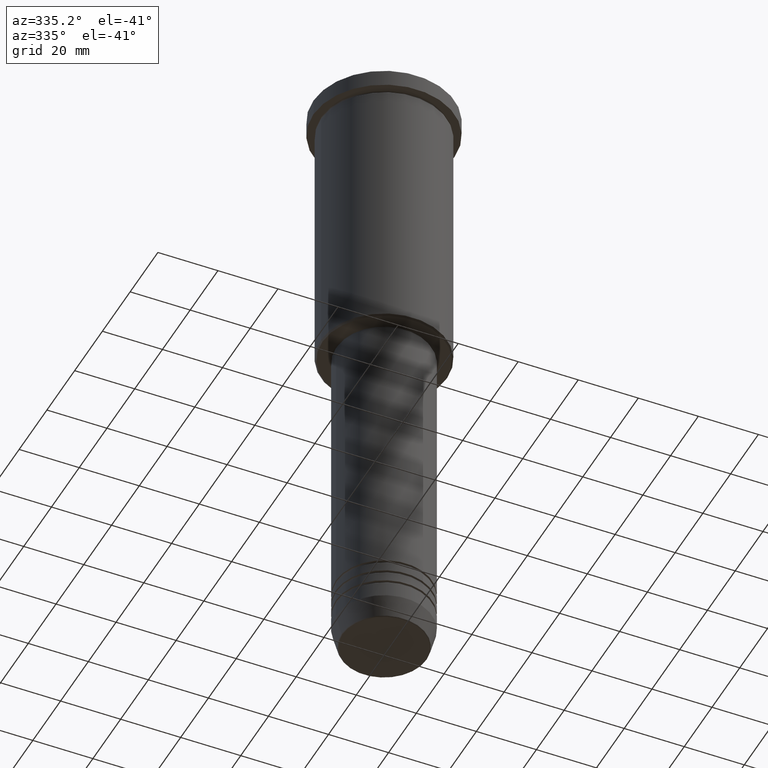
[diagram: clean part render]
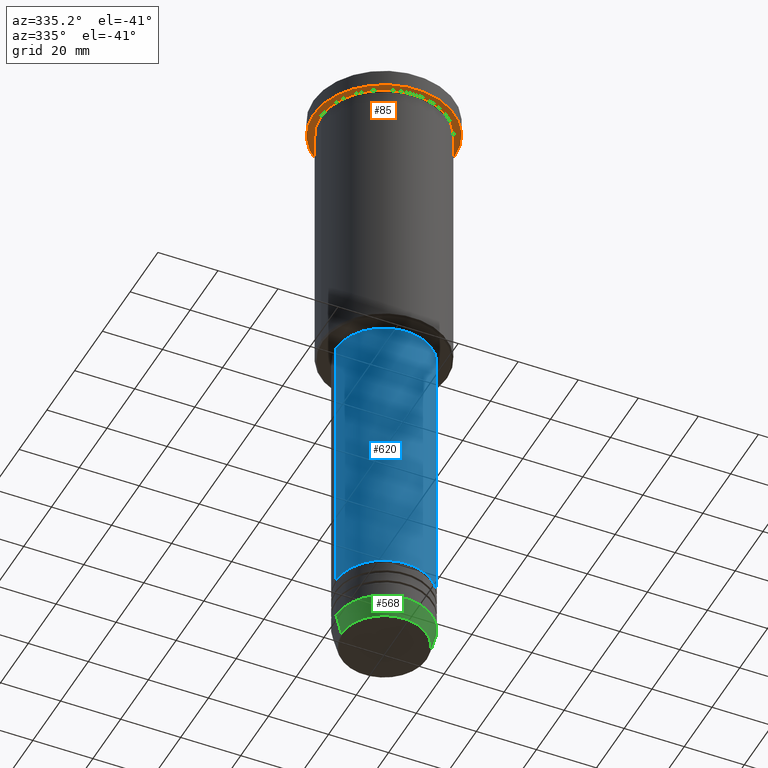
[diagram: same view with three faces highlighted in distinct colors, each labeled with its STEP entity id]
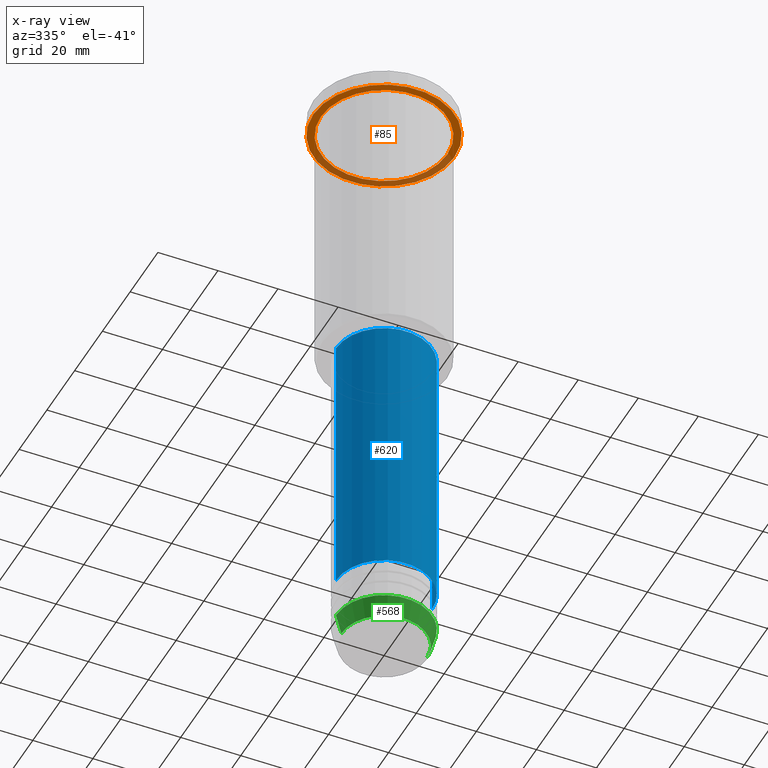
[diagram: x-ray of the same camera — body ghosted, the three highlighted faces saturated]
A machine part, auxiliary view with three faces highlighted in distinct colors.
The next image is the same camera in x-ray (body ghosted, the three faces saturated) — at least one of them is partly hidden behind the body in this view.
Their STEP definitions:

[orange] entity #85 — the highlighted planar face has unit normal (0, 0, -1).
#2 = EDGE_LOOP ( 'NONE', ( #775, #793 ) ) ;
#85 = ADVANCED_FACE ( 'NONE', ( #949, #241 ), #417, .T. ) ;
#117 = CIRCLE ( 'NONE', #174, 21.00000000000000000 ) ;
#129 = CARTESIAN_POINT ( 'NONE',  ( 0.000000000000000000, 23.50000000000000000, -5.999999999999993783 ) ) ;
#171 = EDGE_CURVE ( 'NONE', #826, #209, #236, .T. ) ;
#174 = AXIS2_PLACEMENT_3D ( 'NONE', #191, #369, #719 ) ;
#191 = CARTESIAN_POINT ( 'NONE',  ( 0.000000000000000000, 0.000000000000000000, -5.999999999999993783 ) ) ;
#209 = VERTEX_POINT ( 'NONE', #365 ) ;
#218 = EDGE_CURVE ( 'NONE', #681, #544, #1169, .T. ) ;
#227 = DIRECTION ( 'NONE',  ( 0.000000000000000000, 0.000000000000000000, -1.000000000000000000 ) ) ;
#236 = CIRCLE ( 'NONE', #464, 21.00000000000000000 ) ;
#241 = FACE_OUTER_BOUND ( 'NONE', #2, .T. ) ;
#274 = DIRECTION ( 'NONE',  ( 1.000000000000000000, 0.000000000000000000, 0.000000000000000000 ) ) ;
#294 = EDGE_CURVE ( 'NONE', #209, #826, #117, .T. ) ;
#338 = CIRCLE ( 'NONE', #731, 23.50000000000000000 ) ;
#364 = ORIENTED_EDGE ( 'NONE', *, *, #171, .T. ) ;
#365 = CARTESIAN_POINT ( 'NONE',  ( 21.00000000000000000, 2.571758278209441661E-15, -5.999999999999992895 ) ) ;
#369 = DIRECTION ( 'NONE',  ( -0.000000000000000000, -0.000000000000000000, 1.000000000000000000 ) ) ;
#378 = DIRECTION ( 'NONE',  ( -1.000000000000000000, 0.000000000000000000, 0.000000000000000000 ) ) ;
#401 = CARTESIAN_POINT ( 'NONE',  ( 23.50000000000000000, 0.000000000000000000, -5.999999999999993783 ) ) ;
#417 = PLANE ( 'NONE',  #800 ) ;
#464 = AXIS2_PLACEMENT_3D ( 'NONE', #473, #993, #378 ) ;
#473 = CARTESIAN_POINT ( 'NONE',  ( 0.000000000000000000, 0.000000000000000000, -5.999999999999993783 ) ) ;
#481 = CARTESIAN_POINT ( 'NONE',  ( 0.000000000000000000, 0.000000000000000000, -5.999999999999993783 ) ) ;
#493 = DIRECTION ( 'NONE',  ( 1.000000000000000000, 0.000000000000000000, 0.000000000000000000 ) ) ;
#544 = VERTEX_POINT ( 'NONE', #401 ) ;
#573 = DIRECTION ( 'NONE',  ( -0.000000000000000000, -0.000000000000000000, 1.000000000000000000 ) ) ;
#612 = CARTESIAN_POINT ( 'NONE',  ( -23.50000000000000000, 2.877919977996280320E-15, -5.999999999999993783 ) ) ;
#642 = EDGE_LOOP ( 'NONE', ( #364, #662 ) ) ;
#662 = ORIENTED_EDGE ( 'NONE', *, *, #294, .T. ) ;
#681 = VERTEX_POINT ( 'NONE', #612 ) ;
#698 = DIRECTION ( 'NONE',  ( -1.000000000000000000, 0.000000000000000000, -0.000000000000000000 ) ) ;
#719 = DIRECTION ( 'NONE',  ( -1.000000000000000000, 0.000000000000000000, 0.000000000000000000 ) ) ;
#731 = AXIS2_PLACEMENT_3D ( 'NONE', #481, #573, #493 ) ;
#775 = ORIENTED_EDGE ( 'NONE', *, *, #901, .F. ) ;
#793 = ORIENTED_EDGE ( 'NONE', *, *, #218, .F. ) ;
#800 = AXIS2_PLACEMENT_3D ( 'NONE', #129, #227, #698 ) ;
#826 = VERTEX_POINT ( 'NONE', #894 ) ;
#894 = CARTESIAN_POINT ( 'NONE',  ( -21.00000000000000000, 0.000000000000000000, -5.999999999999992895 ) ) ;
#901 = EDGE_CURVE ( 'NONE', #544, #681, #338, .T. ) ;
#914 = CARTESIAN_POINT ( 'NONE',  ( 0.000000000000000000, 0.000000000000000000, -5.999999999999993783 ) ) ;
#949 = FACE_BOUND ( 'NONE', #642, .T. ) ;
#974 = DIRECTION ( 'NONE',  ( -0.000000000000000000, -0.000000000000000000, 1.000000000000000000 ) ) ;
#993 = DIRECTION ( 'NONE',  ( -0.000000000000000000, -0.000000000000000000, 1.000000000000000000 ) ) ;
#1113 = AXIS2_PLACEMENT_3D ( 'NONE', #914, #974, #274 ) ;
#1169 = CIRCLE ( 'NONE', #1113, 23.50000000000000000 ) ;

[blue] entity #620 — the highlighted cylindrical surface (partial cylindrical patch) has radius 16 mm, axis along (-0, -0, 1).
#5 = EDGE_CURVE ( 'NONE', #1003, #1066, #391, .T. ) ;
#86 = DIRECTION ( 'NONE',  ( 1.000000000000000000, 0.000000000000000000, 0.000000000000000000 ) ) ;
#135 = DIRECTION ( 'NONE',  ( 1.000000000000000000, 0.000000000000000000, 0.000000000000000000 ) ) ;
#168 = VERTEX_POINT ( 'NONE', #384 ) ;
#182 = DIRECTION ( 'NONE',  ( -0.000000000000000000, -0.000000000000000000, 1.000000000000000000 ) ) ;
#219 = CIRCLE ( 'NONE', #1100, 16.00000000000000000 ) ;
#232 = EDGE_CURVE ( 'NONE', #168, #1159, #909, .T. ) ;
#275 = VECTOR ( 'NONE', #1102, 1000.000000000000000 ) ;
#286 = DIRECTION ( 'NONE',  ( -0.000000000000000000, -0.000000000000000000, 1.000000000000000000 ) ) ;
#292 = ORIENTED_EDGE ( 'NONE', *, *, #973, .T. ) ;
#293 = FACE_OUTER_BOUND ( 'NONE', #1062, .T. ) ;
#304 = CARTESIAN_POINT ( 'NONE',  ( -16.00000000000000000, 1.959434878635765131E-15, 0.000000000000000000 ) ) ;
#311 = EDGE_CURVE ( 'NONE', #1066, #1159, #576, .T. ) ;
#384 = CARTESIAN_POINT ( 'NONE',  ( 16.00000000000000000, 0.000000000000000000, -189.9999999999999147 ) ) ;
#391 = LINE ( 'NONE', #304, #275 ) ;
#393 = CARTESIAN_POINT ( 'NONE',  ( -16.00000000000000000, 1.959434878635765131E-15, -189.9999999999999147 ) ) ;
#437 = CARTESIAN_POINT ( 'NONE',  ( 0.000000000000000000, 0.000000000000000000, -97.00000000000005684 ) ) ;
#485 = AXIS2_PLACEMENT_3D ( 'NONE', #956, #952, #135 ) ;
#499 = ORIENTED_EDGE ( 'NONE', *, *, #5, .F. ) ;
#519 = CARTESIAN_POINT ( 'NONE',  ( 16.00000000000000000, 0.000000000000000000, 0.000000000000000000 ) ) ;
#576 = CIRCLE ( 'NONE', #727, 16.00000000000000355 ) ;
#590 = CARTESIAN_POINT ( 'NONE',  ( -16.00000000000000355, 1.959434878635765526E-15, -97.00000000000005684 ) ) ;
#605 = CARTESIAN_POINT ( 'NONE',  ( 16.00000000000000355, 0.000000000000000000, -97.00000000000005684 ) ) ;
#620 = ADVANCED_FACE ( 'NONE', ( #293 ), #702, .T. ) ;
#659 = DIRECTION ( 'NONE',  ( 1.000000000000000000, 0.000000000000000000, 0.000000000000000000 ) ) ;
#702 = CYLINDRICAL_SURFACE ( 'NONE', #485, 16.00000000000000000 ) ;
#708 = ORIENTED_EDGE ( 'NONE', *, *, #311, .F. ) ;
#727 = AXIS2_PLACEMENT_3D ( 'NONE', #437, #791, #86 ) ;
#762 = CARTESIAN_POINT ( 'NONE',  ( 0.000000000000000000, 0.000000000000000000, -189.9999999999999147 ) ) ;
#791 = DIRECTION ( 'NONE',  ( -0.000000000000000000, -0.000000000000000000, 1.000000000000000000 ) ) ;
#909 = LINE ( 'NONE', #519, #940 ) ;
#913 = ORIENTED_EDGE ( 'NONE', *, *, #232, .T. ) ;
#940 = VECTOR ( 'NONE', #182, 1000.000000000000000 ) ;
#952 = DIRECTION ( 'NONE',  ( -0.000000000000000000, -0.000000000000000000, 1.000000000000000000 ) ) ;
#956 = CARTESIAN_POINT ( 'NONE',  ( 0.000000000000000000, 0.000000000000000000, 0.000000000000000000 ) ) ;
#973 = EDGE_CURVE ( 'NONE', #1003, #168, #219, .T. ) ;
#1003 = VERTEX_POINT ( 'NONE', #393 ) ;
#1062 = EDGE_LOOP ( 'NONE', ( #499, #292, #913, #708 ) ) ;
#1066 = VERTEX_POINT ( 'NONE', #590 ) ;
#1100 = AXIS2_PLACEMENT_3D ( 'NONE', #762, #286, #659 ) ;
#1102 = DIRECTION ( 'NONE',  ( -0.000000000000000000, -0.000000000000000000, 1.000000000000000000 ) ) ;
#1159 = VERTEX_POINT ( 'NONE', #605 ) ;

[green] entity #568 — the highlighted conical surface has half-angle 15 deg.
#91 = DIRECTION ( 'NONE',  ( -0.2588190451025213501, 3.169619151431772337E-17, 0.9659258262890680902 ) ) ;
#109 = VERTEX_POINT ( 'NONE', #497 ) ;
#112 = CARTESIAN_POINT ( 'NONE',  ( 16.00000000000000000, 0.000000000000000000, -204.0000000000000284 ) ) ;
#187 = CARTESIAN_POINT ( 'NONE',  ( -16.00000000000000000, 1.959434878635765131E-15, -204.0000000000000284 ) ) ;
#213 = CARTESIAN_POINT ( 'NONE',  ( -14.22365507213718239, 1.850665122131322942E-15, -210.6294095225512706 ) ) ;
#249 = EDGE_CURVE ( 'NONE', #965, #109, #741, .T. ) ;
#278 = CONICAL_SURFACE ( 'NONE', #941, 16.00000000000000000, 0.2617993877991500740 ) ;
#307 = FACE_OUTER_BOUND ( 'NONE', #1047, .T. ) ;
#313 = DIRECTION ( 'NONE',  ( 1.000000000000000000, 0.000000000000000000, 0.000000000000000000 ) ) ;
#362 = VERTEX_POINT ( 'NONE', #872 ) ;
#389 = EDGE_CURVE ( 'NONE', #965, #362, #882, .T. ) ;
#426 = CARTESIAN_POINT ( 'NONE',  ( 16.00000000000000000, 0.000000000000000000, -204.0000000000000284 ) ) ;
#431 = DIRECTION ( 'NONE',  ( -0.000000000000000000, -0.000000000000000000, 1.000000000000000000 ) ) ;
#465 = VECTOR ( 'NONE', #856, 1000.000000000000000 ) ;
#497 = CARTESIAN_POINT ( 'NONE',  ( -16.00000000000000000, 1.959434878635765131E-15, -204.0000000000000284 ) ) ;
#500 = DIRECTION ( 'NONE',  ( 1.000000000000000000, 0.000000000000000000, 0.000000000000000000 ) ) ;
#523 = VECTOR ( 'NONE', #91, 1000.000000000000000 ) ;
#568 = ADVANCED_FACE ( 'NONE', ( #307 ), #278, .T. ) ;
#570 = CARTESIAN_POINT ( 'NONE',  ( 0.000000000000000000, 0.000000000000000000, -204.0000000000000284 ) ) ;
#583 = EDGE_CURVE ( 'NONE', #362, #754, #669, .T. ) ;
#632 = EDGE_CURVE ( 'NONE', #109, #754, #1171, .T. ) ;
#634 = AXIS2_PLACEMENT_3D ( 'NONE', #1151, #431, #500 ) ;
#665 = DIRECTION ( 'NONE',  ( -0.000000000000000000, -0.000000000000000000, 1.000000000000000000 ) ) ;
#669 = LINE ( 'NONE', #112, #465 ) ;
#711 = AXIS2_PLACEMENT_3D ( 'NONE', #790, #777, #972 ) ;
#734 = ORIENTED_EDGE ( 'NONE', *, *, #583, .T. ) ;
#741 = LINE ( 'NONE', #187, #523 ) ;
#754 = VERTEX_POINT ( 'NONE', #426 ) ;
#777 = DIRECTION ( 'NONE',  ( -0.000000000000000000, -0.000000000000000000, 1.000000000000000000 ) ) ;
#790 = CARTESIAN_POINT ( 'NONE',  ( 0.000000000000000000, 0.000000000000000000, -210.6294095225512706 ) ) ;
#856 = DIRECTION ( 'NONE',  ( 0.2588190451025213501, 0.000000000000000000, 0.9659258262890680902 ) ) ;
#858 = ORIENTED_EDGE ( 'NONE', *, *, #632, .F. ) ;
#872 = CARTESIAN_POINT ( 'NONE',  ( 14.22365507213718239, 0.000000000000000000, -210.6294095225512706 ) ) ;
#882 = CIRCLE ( 'NONE', #711, 14.22365507213718239 ) ;
#941 = AXIS2_PLACEMENT_3D ( 'NONE', #570, #665, #313 ) ;
#965 = VERTEX_POINT ( 'NONE', #213 ) ;
#972 = DIRECTION ( 'NONE',  ( 1.000000000000000000, 0.000000000000000000, 0.000000000000000000 ) ) ;
#1008 = ORIENTED_EDGE ( 'NONE', *, *, #249, .F. ) ;
#1047 = EDGE_LOOP ( 'NONE', ( #1008, #1052, #734, #858 ) ) ;
#1052 = ORIENTED_EDGE ( 'NONE', *, *, #389, .T. ) ;
#1151 = CARTESIAN_POINT ( 'NONE',  ( 0.000000000000000000, 0.000000000000000000, -204.0000000000000284 ) ) ;
#1171 = CIRCLE ( 'NONE', #634, 16.00000000000000000 ) ;